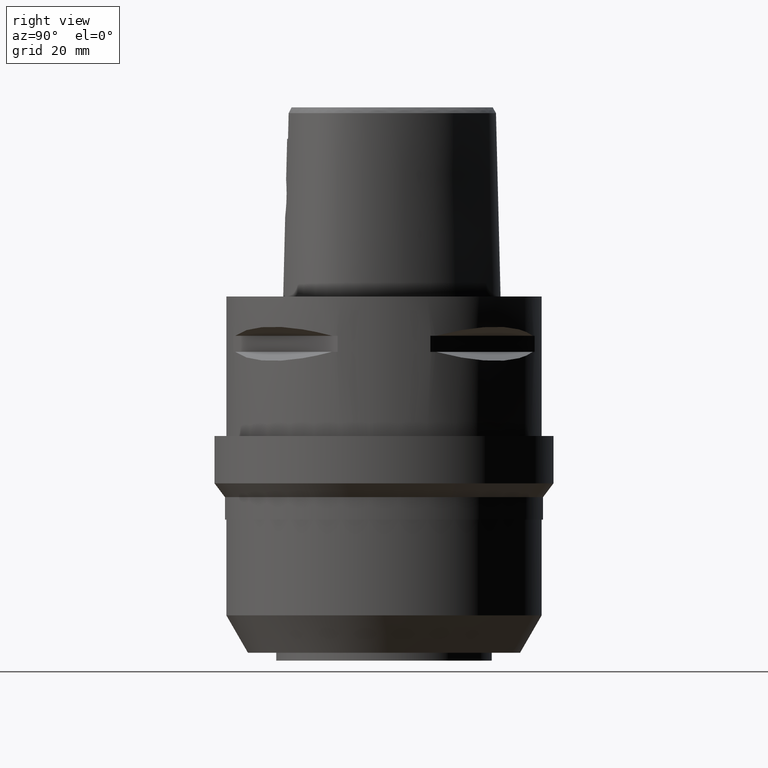
[diagram: clean part render]
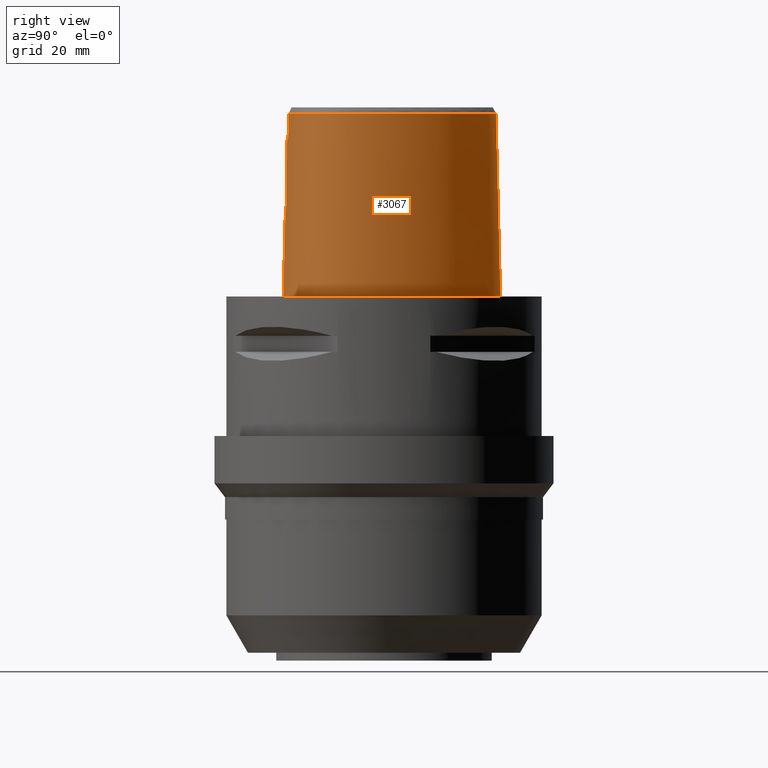
[diagram: same view with one face highlighted and labeled with its STEP entity id]
A machine part, right view. The second image highlights one B-rep face of the part: STEP entity #3067.
In plain terms, the highlighted face is a freeform B-spline surface patch.
Its self-contained STEP definition (entity closure, byte-faithful):
#132=CARTESIAN_POINT('',(4.472216720977E0,-2.420009030094E1,4.652069014669E1));
#142=CARTESIAN_POINT('',(-1.223003593101E-11,2.841206021535E1,
4.652071719451E1));
#143=CARTESIAN_POINT('',(4.473052303374E-1,2.841206021535E1,4.652071719450E1));
#144=CARTESIAN_POINT('',(1.340255071175E0,2.836691543486E1,4.652068040744E1));
#145=CARTESIAN_POINT('',(2.756726260826E0,2.815155549740E1,4.652072059112E1));
#146=CARTESIAN_POINT('',(4.242407517223E0,2.777300766547E1,4.652071747354E1));
#147=CARTESIAN_POINT('',(5.832995938368E0,2.719978431937E1,4.652072012237E1));
#148=CARTESIAN_POINT('',(7.464692637055E0,2.643136714353E1,4.652071453177E1));
#149=CARTESIAN_POINT('',(9.051050925058E0,2.551457629101E1,4.652072503055E1));
#150=CARTESIAN_POINT('',(1.063657931704E1,2.443220907429E1,4.652071388998E1));
#151=CARTESIAN_POINT('',(1.222026376156E1,2.317947605267E1,4.652072845982E1));
#152=CARTESIAN_POINT('',(1.380487927744E1,2.175024345407E1,4.652072124714E1));
#153=CARTESIAN_POINT('',(1.547133671191E1,2.004668810584E1,4.652070873213E1));
#154=CARTESIAN_POINT('',(1.724053071546E1,1.798818270638E1,4.652072706152E1));
#155=CARTESIAN_POINT('',(1.911012701481E1,1.549050547782E1,4.652068367594E1));
#156=CARTESIAN_POINT('',(2.100569884436E1,1.252918350586E1,4.652072594476E1));
#157=CARTESIAN_POINT('',(2.268526048937E1,9.399382483775E0,4.652069199709E1));
#158=CARTESIAN_POINT('',(2.398789417082E1,6.468905484010E0,4.652072817443E1));
#159=CARTESIAN_POINT('',(2.493327135881E1,3.881751196728E0,4.652070128272E1));
#160=CARTESIAN_POINT('',(2.562133203878E1,1.547213393791E0,4.652072173797E1));
#161=CARTESIAN_POINT('',(2.610948330496E1,-6.039153198714E-1,4.652071504918E1));
#162=CARTESIAN_POINT('',(2.643075552833E1,-2.616795928225E0,4.652071582242E1));
#163=CARTESIAN_POINT('',(2.660356724347E1,-4.529300696725E0,4.652072654704E1));
#164=CARTESIAN_POINT('',(2.663447474330E1,-6.381662783093E0,4.652071344010E1));
#165=CARTESIAN_POINT('',(2.651480075670E1,-8.194568157117E0,4.652072235775E1));
#166=CARTESIAN_POINT('',(2.624542532007E1,-9.884535479781E0,4.652071793976E1));
#167=CARTESIAN_POINT('',(2.585260387256E1,-1.139751630477E1,4.652072134273E1));
#168=CARTESIAN_POINT('',(2.535188582919E1,-1.275966346998E1,4.652071174524E1));
#169=CARTESIAN_POINT('',(2.475667352027E1,-1.398474150121E1,4.652071923547E1));
#170=CARTESIAN_POINT('',(2.405083357627E1,-1.512505966824E1,4.652072292321E1));
#171=CARTESIAN_POINT('',(2.319182842129E1,-1.624358996820E1,4.652072107905E1));
#172=CARTESIAN_POINT('',(2.215667106090E1,-1.734612162869E1,4.652071780396E1));
#173=CARTESIAN_POINT('',(2.091376923437E1,-1.843694157628E1,4.652071805933E1));
#174=CARTESIAN_POINT('',(1.945604579227E1,-1.948880862358E1,4.652071719493E1));
#175=CARTESIAN_POINT('',(1.788897376920E1,-2.042492726210E1,4.652071965619E1));
#176=CARTESIAN_POINT('',(1.619764506069E1,-2.126796279424E1,4.652071675561E1));
#177=CARTESIAN_POINT('',(1.435712536504E1,-2.202878227441E1,4.652071919910E1));
#178=CARTESIAN_POINT('',(1.234138327976E1,-2.271012319689E1,4.652071993804E1));
#179=CARTESIAN_POINT('',(1.009831522388E1,-2.331272858243E1,4.652070382142E1));
#180=CARTESIAN_POINT('',(7.538588905751E0,-2.383037474628E1,4.652075072090E1));
#181=CARTESIAN_POINT('',(5.536084334022E0,-2.409825088739E1,4.652065091830E1));
#182=CARTESIAN_POINT('',(4.472216720977E0,-2.420009030094E1,4.652069014669E1));
#259=DIRECTION('',(1.388127436484E-9,-2.499239851702E-2,-9.996876412242E-1));
#260=VECTOR('',#259,1.045326522127E1);
#261=CARTESIAN_POINT('',(-1.451045074373E-8,-2.457504746727E1,
4.000000005214E1));
#262=LINE('',#261,#260);
#280=CARTESIAN_POINT('',(-2.119246273958E-12,-2.506378435149E1,2.045E1));
#285=DIRECTION('',(-7.297938437820E-13,-2.499051295404E-2,-9.996876883619E-1));
#286=VECTOR('',#285,2.045638876829E1);
#287=CARTESIAN_POINT('',(-2.119246273958E-12,-2.506378435149E1,2.045E1));
#288=LINE('',#287,#286);
#308=CARTESIAN_POINT('',(-1.704819286307E-11,-2.5575E1,1.118364660139E-13));
#309=CARTESIAN_POINT('',(1.192855654687E0,-2.5575E1,1.118364660139E-13));
#310=CARTESIAN_POINT('',(3.525474009142E0,-2.548902365288E1,
-5.190348450835E-14));
#311=CARTESIAN_POINT('',(6.913191500119E0,-2.511614812679E1,
1.390749675837E-14));
#312=CARTESIAN_POINT('',(1.004555650592E1,-2.453146325509E1,0.E0));
#313=CARTESIAN_POINT('',(1.287480431389E1,-2.377673871202E1,0.E0));
#314=CARTESIAN_POINT('',(1.537685864343E1,-2.289357187451E1,0.E0));
#315=CARTESIAN_POINT('',(1.755784012921E1,-2.191831839298E1,0.E0));
#316=CARTESIAN_POINT('',(1.943977073912E1,-2.087916476292E1,0.E0));
#317=CARTESIAN_POINT('',(2.105231534689E1,-1.979609368880E1,0.E0));
#318=CARTESIAN_POINT('',(2.242617933573E1,-1.868231820935E1,0.E0));
#319=CARTESIAN_POINT('',(2.359218890728E1,-1.754336768509E1,0.E0));
#320=CARTESIAN_POINT('',(2.457422268564E1,-1.638207117775E1,0.E0));
#321=CARTESIAN_POINT('',(2.539083324940E1,-1.520281756939E1,0.E0));
#322=CARTESIAN_POINT('',(2.607594664674E1,-1.396989071493E1,0.E0));
#323=CARTESIAN_POINT('',(2.665774432240E1,-1.262889422025E1,0.E0));
#324=CARTESIAN_POINT('',(2.713657693131E1,-1.115034439777E1,0.E0));
#325=CARTESIAN_POINT('',(2.749973550563E1,-9.518521507E0,0.E0));
#326=CARTESIAN_POINT('',(2.773143210919E1,-7.709925722843E0,0.E0));
#327=CARTESIAN_POINT('',(2.780878539476E1,-5.702858580120E0,0.E0));
#328=CARTESIAN_POINT('',(2.770312756552E1,-3.478249491200E0,0.E0));
#329=CARTESIAN_POINT('',(2.738074183948E1,-1.022878890598E0,0.E0));
#330=CARTESIAN_POINT('',(2.680591021336E1,1.662565602731E0,0.E0));
#331=CARTESIAN_POINT('',(2.594630766962E1,4.557115348051E0,0.E0));
#332=CARTESIAN_POINT('',(2.478176121823E1,7.610490465510E0,0.E0));
#333=CARTESIAN_POINT('',(2.331365745279E1,1.074148685814E1,0.E0));
#334=CARTESIAN_POINT('',(2.157347165724E1,1.384011179641E1,0.E0));
#335=CARTESIAN_POINT('',(1.964060043903E1,1.675996304863E1,0.E0));
#336=CARTESIAN_POINT('',(1.759822796826E1,1.939974571574E1,0.E0));
#337=CARTESIAN_POINT('',(1.551951354564E1,2.170589686970E1,0.E0));
#338=CARTESIAN_POINT('',(1.346458118819E1,2.365966150815E1,0.E0));
#339=CARTESIAN_POINT('',(1.147339877138E1,2.527228069645E1,0.E0));
#340=CARTESIAN_POINT('',(9.569291645170E0,2.657104012927E1,0.E0));
#341=CARTESIAN_POINT('',(7.761236493572E0,2.759097337069E1,0.E0));
#342=CARTESIAN_POINT('',(6.048963475842E0,2.836733969280E1,0.E0));
#343=CARTESIAN_POINT('',(4.426464392993E0,2.893213407126E1,0.E0));
#344=CARTESIAN_POINT('',(2.883294620587E0,2.931235794594E1,1.312054045603E-14));
#345=CARTESIAN_POINT('',(1.410670896354E0,2.952903181481E1,
-4.896652360467E-14));
#346=CARTESIAN_POINT('',(4.637439554641E-1,2.957499999999E1,
1.055081947735E-13));
#347=CARTESIAN_POINT('',(4.094835185930E-11,2.957499999999E1,
1.055081947735E-13));
#352=CARTESIAN_POINT('',(4.094835185930E-11,2.957499999999E1,
1.055081947735E-13));
#391=CARTESIAN_POINT('',(-1.704819286307E-11,-2.5575E1,1.118364660139E-13));
#994=CARTESIAN_POINT('',(-2.119246273958E-12,-2.506378435149E1,2.045E1));
#995=CARTESIAN_POINT('',(3.954072385966E-1,-2.506378435149E1,2.045E1));
#996=CARTESIAN_POINT('',(1.186753459268E0,-2.505127021271E1,2.055377441387E1));
#997=CARTESIAN_POINT('',(2.293901026105E0,-2.499899038356E1,2.101029884895E1));
#998=CARTESIAN_POINT('',(3.249199742156E0,-2.492423366302E1,2.174038340004E1));
#999=CARTESIAN_POINT('',(3.983109891139E0,-2.484333493048E1,2.269399437273E1));
#1000=CARTESIAN_POINT('',(4.444902099457E0,-2.477340454867E1,2.380604644136E1));
#1001=CARTESIAN_POINT('',(4.602189725522E0,-2.472804812745E1,2.499792083744E1));
#1002=CARTESIAN_POINT('',(4.446334752733E0,-2.471346400510E1,2.618704469361E1));
#1003=CARTESIAN_POINT('',(3.988616765538E0,-2.472738510881E1,2.729584248229E1));
#1004=CARTESIAN_POINT('',(3.258671858173E0,-2.476043868878E1,2.825013255838E1));
#1005=CARTESIAN_POINT('',(2.303887962671E0,-2.479896037678E1,2.898443751551E1));
#1006=CARTESIAN_POINT('',(1.191549157684E0,-2.482886762172E1,2.944549741629E1));
#1007=CARTESIAN_POINT('',(3.970274391534E-1,-2.483629963748E1,2.955E1));
#1008=CARTESIAN_POINT('',(1.351075727146E-14,-2.483629963748E1,2.955E1));
#1013=CARTESIAN_POINT('',(4.602926386879E0,-2.435121850030E1,4.000000005215E1));
#1014=CARTESIAN_POINT('',(4.588866899356E0,-2.433440433283E1,4.072434907413E1));
#1015=CARTESIAN_POINT('',(4.559961035626E0,-2.430022594202E1,4.217314077647E1));
#1016=CARTESIAN_POINT('',(4.516394065040E0,-2.424985529238E1,4.434670381198E1));
#1017=CARTESIAN_POINT('',(4.487210999458E0,-2.421685509515E1,4.579599754735E1));
#1018=CARTESIAN_POINT('',(4.472216720977E0,-2.420009030094E1,4.652069014669E1));
#1023=DIRECTION('',(1.142754943752E-12,2.499051293969E-2,-9.996876883622E-1));
#1024=VECTOR('',#1023,4.653525069487E1);
#1025=CARTESIAN_POINT('',(-1.223003593101E-11,2.841206021535E1,
4.652071719451E1));
#1026=LINE('',#1025,#1024);
#1030=CARTESIAN_POINT('',(4.602926386879E0,-2.435121850030E1,4.000000005215E1));
#1031=CARTESIAN_POINT('',(4.092927945188E0,-2.440134254990E1,4.000000005215E1));
#1032=CARTESIAN_POINT('',(3.071957838276E0,-2.448406989328E1,3.999999998262E1));
#1033=CARTESIAN_POINT('',(1.536621703767E0,-2.455890147704E1,3.999999998262E1));
#1034=CARTESIAN_POINT('',(5.124223333400E-1,-2.457504746727E1,
4.000000005214E1));
#1035=CARTESIAN_POINT('',(-1.451045074373E-8,-2.457504746727E1,
4.000000005214E1));
#1040=CARTESIAN_POINT('',(-1.451045074373E-8,-2.457504746727E1,
4.000000005214E1));
#1519=VERTEX_POINT('',#132);
#1520=VERTEX_POINT('',#1013);
#1524=CARTESIAN_POINT('',(-1.223003593101E-11,2.841206021535E1,
4.652071719451E1));
#1525=VERTEX_POINT('',#1524);
#1526=VERTEX_POINT('',#352);
#1527=VERTEX_POINT('',#391);
#1528=VERTEX_POINT('',#1040);
#1529=CARTESIAN_POINT('',(1.351075727145E-14,-2.483629963748E1,2.955E1));
#1530=VERTEX_POINT('',#1529);
#1531=VERTEX_POINT('',#280);
#2947=CARTESIAN_POINT('',(-8.532294277688E-1,-2.559082453144E1,
-9.304144973777E-1));
#2948=CARTESIAN_POINT('',(-8.462047058068E-1,-2.518772800224E1,
1.519677012384E1));
#2949=CARTESIAN_POINT('',(-8.391799838448E-1,-2.478463147304E1,
3.132395474505E1));
#2950=CARTESIAN_POINT('',(-8.321552618827E-1,-2.438153494385E1,
4.745113936626E1));
#2951=CARTESIAN_POINT('',(-5.689009026255E-1,-2.559577917836E1,
-9.304144973777E-1));
#2952=CARTESIAN_POINT('',(-5.642169923032E-1,-2.519264563524E1,
1.519677012384E1));
#2953=CARTESIAN_POINT('',(-5.595330819809E-1,-2.478951209212E1,
3.132395474505E1));
#2954=CARTESIAN_POINT('',(-5.548491716586E-1,-2.438637854900E1,
4.745113936626E1));
#2955=CARTESIAN_POINT('',(2.393561154381E0,-2.562160365921E1,
-9.304144973777E-1));
#2956=CARTESIAN_POINT('',(2.373865160051E0,-2.521827242139E1,1.519677012384E1));
#2957=CARTESIAN_POINT('',(2.354169165720E0,-2.481494118357E1,3.132395474505E1));
#2958=CARTESIAN_POINT('',(2.334473171390E0,-2.441160994575E1,4.745113936626E1));
#2959=CARTESIAN_POINT('',(6.695047936574E0,-2.526858194672E1,
-9.304144973777E-1));
#2960=CARTESIAN_POINT('',(6.639625075593E0,-2.486795320356E1,1.519677012384E1));
#2961=CARTESIAN_POINT('',(6.584202214611E0,-2.446732446040E1,3.132395474505E1));
#2962=CARTESIAN_POINT('',(6.528779353629E0,-2.406669571724E1,4.745113936626E1));
#2963=CARTESIAN_POINT('',(1.174634101497E1,-2.415815461144E1,
-9.304144973777E-1));
#2964=CARTESIAN_POINT('',(1.164093423786E1,-2.376831842989E1,1.519677012384E1));
#2965=CARTESIAN_POINT('',(1.153552746074E1,-2.337848224833E1,3.132395474505E1));
#2966=CARTESIAN_POINT('',(1.143012068363E1,-2.298864606677E1,4.745113936626E1));
#2967=CARTESIAN_POINT('',(1.530623779619E1,-2.298697010235E1,
-9.304144973777E-1));
#2968=CARTESIAN_POINT('',(1.515935281855E1,-2.261055603656E1,1.519677012384E1));
#2969=CARTESIAN_POINT('',(1.501246784092E1,-2.223414197077E1,3.132395474505E1));
#2970=CARTESIAN_POINT('',(1.486558286329E1,-2.185772790498E1,4.745113936626E1));
#2971=CARTESIAN_POINT('',(1.856135208421E1,-2.147443746736E1,
-9.304144973777E-1));
#2972=CARTESIAN_POINT('',(1.836798846562E1,-2.111924011647E1,1.519677012384E1));
#2973=CARTESIAN_POINT('',(1.817462484703E1,-2.076404276558E1,3.132395474505E1));
#2974=CARTESIAN_POINT('',(1.798126122845E1,-2.040884541469E1,4.745113936626E1));
#2975=CARTESIAN_POINT('',(2.143542293280E1,-1.961750339173E1,
-9.304144973777E-1));
#2976=CARTESIAN_POINT('',(2.119046238745E1,-1.929498366423E1,1.519677012384E1));
#2977=CARTESIAN_POINT('',(2.094550184211E1,-1.897246393673E1,3.132395474505E1));
#2978=CARTESIAN_POINT('',(2.070054129677E1,-1.864994420923E1,4.745113936626E1));
#2979=CARTESIAN_POINT('',(2.344929528192E1,-1.778045351985E1,
-9.304144973777E-1));
#2980=CARTESIAN_POINT('',(2.315870204504E1,-1.749879693631E1,1.519677012384E1));
#2981=CARTESIAN_POINT('',(2.286810880815E1,-1.721714035276E1,3.132395474505E1));
#2982=CARTESIAN_POINT('',(2.257751557127E1,-1.693548376922E1,4.745113936626E1));
#2983=CARTESIAN_POINT('',(2.479336081491E1,-1.613554022482E1,
-9.304144973777E-1));
#2984=CARTESIAN_POINT('',(2.446791222880E1,-1.589630653624E1,1.519677012384E1));
#2985=CARTESIAN_POINT('',(2.414246364269E1,-1.565707284767E1,3.132395474505E1));
#2986=CARTESIAN_POINT('',(2.381701505658E1,-1.541783915909E1,4.745113936626E1));
#2987=CARTESIAN_POINT('',(2.565830880209E1,-1.481383149385E1,
-9.304144973777E-1));
#2988=CARTESIAN_POINT('',(2.530843714164E1,-1.461183299627E1,1.519677012384E1));
#2989=CARTESIAN_POINT('',(2.495856548119E1,-1.440983449869E1,3.132395474505E1));
#2990=CARTESIAN_POINT('',(2.460869382075E1,-1.420783600110E1,4.745113936626E1));
#2991=CARTESIAN_POINT('',(2.637046814588E1,-1.340391019841E1,
-9.304144973777E-1));
#2992=CARTESIAN_POINT('',(2.600056140212E1,-1.324168030106E1,1.519677012384E1));
#2993=CARTESIAN_POINT('',(2.563065465836E1,-1.307945040371E1,3.132395474505E1));
#2994=CARTESIAN_POINT('',(2.526074791461E1,-1.291722050636E1,4.745113936626E1));
#2995=CARTESIAN_POINT('',(2.712297208031E1,-1.141745865555E1,
-9.304144973777E-1));
#2996=CARTESIAN_POINT('',(2.673375369916E1,-1.130662581364E1,1.519677012384E1));
#2997=CARTESIAN_POINT('',(2.634453531801E1,-1.119579297173E1,3.132395474505E1));
#2998=CARTESIAN_POINT('',(2.595531693686E1,-1.108496012982E1,4.745113936626E1));
#2999=CARTESIAN_POINT('',(2.770696775954E1,-8.754869100899E0,
-9.304144973777E-1));
#3000=CARTESIAN_POINT('',(2.730517726037E1,-8.703986976984E0,1.519677012384E1));
#3001=CARTESIAN_POINT('',(2.690338676120E1,-8.653104853069E0,3.132395474505E1));
#3002=CARTESIAN_POINT('',(2.650159626204E1,-8.602222729154E0,4.745113936626E1));
#3003=CARTESIAN_POINT('',(2.787808443151E1,-5.337383714055E0,
-9.304144973777E-1));
#3004=CARTESIAN_POINT('',(2.747379250764E1,-5.347524337095E0,1.519677012384E1));
#3005=CARTESIAN_POINT('',(2.706950058377E1,-5.357664960136E0,3.132395474505E1));
#3006=CARTESIAN_POINT('',(2.666520865989E1,-5.367805583176E0,4.745113936626E1));
#3007=CARTESIAN_POINT('',(2.756041892291E1,-1.762105663685E0,
-9.304144973777E-1));
#3008=CARTESIAN_POINT('',(2.716099298145E1,-1.823107493154E0,1.519677012384E1));
#3009=CARTESIAN_POINT('',(2.676156703999E1,-1.884109322623E0,3.132395474505E1));
#3010=CARTESIAN_POINT('',(2.636214109853E1,-1.945111152092E0,4.745113936626E1));
#3011=CARTESIAN_POINT('',(2.679474625823E1,1.906447387465E0,
-9.304144973777E-1));
#3012=CARTESIAN_POINT('',(2.640443225581E1,1.802817671408E0,1.519677012384E1));
#3013=CARTESIAN_POINT('',(2.601411825338E1,1.699187955350E0,3.132395474505E1));
#3014=CARTESIAN_POINT('',(2.562380425096E1,1.595558239293E0,4.745113936626E1));
#3015=CARTESIAN_POINT('',(2.523075706230E1,6.836210430762E0,
-9.304144973777E-1));
#3016=CARTESIAN_POINT('',(2.485610464671E1,6.683875464221E0,1.519677012384E1));
#3017=CARTESIAN_POINT('',(2.448145223112E1,6.531540497680E0,3.132395474505E1));
#3018=CARTESIAN_POINT('',(2.410679981553E1,6.379205531139E0,4.745113936626E1));
#3019=CARTESIAN_POINT('',(2.235908247812E1,1.290902243077E1,
-9.304144973777E-1));
#3020=CARTESIAN_POINT('',(2.200846692373E1,1.270659196414E1,1.519677012384E1));
#3021=CARTESIAN_POINT('',(2.165785136934E1,1.250416149751E1,3.132395474505E1));
#3022=CARTESIAN_POINT('',(2.130723581495E1,1.230173103088E1,4.745113936626E1));
#3023=CARTESIAN_POINT('',(1.777103258668E1,1.953703864480E1,
-9.304144973777E-1));
#3024=CARTESIAN_POINT('',(1.745811262042E1,1.927961880159E1,1.519677012384E1));
#3025=CARTESIAN_POINT('',(1.714519265416E1,1.902219895838E1,3.132395474505E1));
#3026=CARTESIAN_POINT('',(1.683227268790E1,1.876477911517E1,4.745113936626E1));
#3027=CARTESIAN_POINT('',(1.323332856327E1,2.406149249942E1,
-9.304144973777E-1));
#3028=CARTESIAN_POINT('',(1.296695409453E1,2.375598709267E1,1.519677012384E1));
#3029=CARTESIAN_POINT('',(1.270057962580E1,2.345048168591E1,3.132395474505E1));
#3030=CARTESIAN_POINT('',(1.243420515707E1,2.314497627916E1,4.745113936626E1));
#3031=CARTESIAN_POINT('',(9.316733117536E0,2.681182150683E1,
-9.304144973777E-1));
#3032=CARTESIAN_POINT('',(9.105791461544E0,2.646675913832E1,1.519677012384E1));
#3033=CARTESIAN_POINT('',(8.894849805552E0,2.612169676981E1,3.132395474505E1));
#3034=CARTESIAN_POINT('',(8.683908149560E0,2.577663440130E1,4.745113936626E1));
#3035=CARTESIAN_POINT('',(6.271543170713E0,2.837237220570E1,
-9.304144973777E-1));
#3036=CARTESIAN_POINT('',(6.114741921428E0,2.799897532781E1,1.519677012384E1));
#3037=CARTESIAN_POINT('',(5.957940672144E0,2.762557844993E1,3.132395474505E1));
#3038=CARTESIAN_POINT('',(5.801139422860E0,2.725218157205E1,4.745113936626E1));
#3039=CARTESIAN_POINT('',(3.154109046616E0,2.936302093426E1,
-9.304144973777E-1));
#3040=CARTESIAN_POINT('',(3.067023396795E0,2.896669974054E1,1.519677012384E1));
#3041=CARTESIAN_POINT('',(2.979937746975E0,2.857037854681E1,3.132395474505E1));
#3042=CARTESIAN_POINT('',(2.892852097155E0,2.817405735309E1,4.745113936626E1));
#3043=CARTESIAN_POINT('',(7.484115208010E-1,2.963215901968E1,
-9.304144973777E-1));
#3044=CARTESIAN_POINT('',(7.265635656695E-1,2.922802202840E1,1.519677012384E1));
#3045=CARTESIAN_POINT('',(7.047156105380E-1,2.882388503712E1,3.132395474505E1));
#3046=CARTESIAN_POINT('',(6.828676554065E-1,2.841974804585E1,4.745113936626E1));
#3047=CARTESIAN_POINT('',(-6.060951003762E-1,2.958848805176E1,
-9.304144973777E-1));
#3048=CARTESIAN_POINT('',(-5.886350995932E-1,2.918561926986E1,
1.519677012384E1));
#3049=CARTESIAN_POINT('',(-5.711750988101E-1,2.878275048796E1,
3.132395474505E1));
#3050=CARTESIAN_POINT('',(-5.537150980271E-1,2.837988170606E1,
4.745113936626E1));
#3051=CARTESIAN_POINT('',(-9.090099845217E-1,2.956867551648E1,
-9.304144973777E-1));
#3052=CARTESIAN_POINT('',(-8.826521031063E-1,2.916640541387E1,
1.519677012384E1));
#3053=CARTESIAN_POINT('',(-8.562942216909E-1,2.876413531125E1,
3.132395474505E1));
#3054=CARTESIAN_POINT('',(-8.299363402755E-1,2.836186520863E1,
4.745113936626E1));
#3055=B_SPLINE_SURFACE_WITH_KNOTS('',3,3,((#2947,#2948,#2949,#2950),(#2951,
#2952,#2953,#2954),(#2955,#2956,#2957,#2958),(#2959,#2960,#2961,#2962),(#2963,
#2964,#2965,#2966),(#2967,#2968,#2969,#2970),(#2971,#2972,#2973,#2974),(#2975,
#2976,#2977,#2978),(#2979,#2980,#2981,#2982),(#2983,#2984,#2985,#2986),(#2987,
#2988,#2989,#2990),(#2991,#2992,#2993,#2994),(#2995,#2996,#2997,#2998),(#2999,
#3000,#3001,#3002),(#3003,#3004,#3005,#3006),(#3007,#3008,#3009,#3010),(#3011,
#3012,#3013,#3014),(#3015,#3016,#3017,#3018),(#3019,#3020,#3021,#3022),(#3023,
#3024,#3025,#3026),(#3027,#3028,#3029,#3030),(#3031,#3032,#3033,#3034),(#3035,
#3036,#3037,#3038),(#3039,#3040,#3041,#3042),(#3043,#3044,#3045,#3046),(#3047,
#3048,#3049,#3050),(#3051,#3052,#3053,#3054)),.UNSPECIFIED.,.F.,.F.,.F.,(4,1,1,
1,1,1,1,1,1,1,1,1,1,1,1,1,1,1,1,1,1,1,1,1,4),(4,4),(-8.851417483040E-3,0.E0,
8.333333333346E-2,1.250000000001E-1,1.666666666668E-1,2.083333333334E-1,2.5E-1,
2.916666666667E-1,3.125E-1,3.333333333333E-1,3.541666666667E-1,
3.749999999999E-1,4.166666666666E-1,4.583333333332E-1,4.999999999999E-1,
5.416666666665E-1,5.833333333331E-1,6.666666666665E-1,7.499999999997E-1,
8.333333333330E-1,8.749999999996E-1,9.166666666663E-1,9.583333333329E-1,1.E0,
1.012009199036E0),(4.796630408838E-9,9.999997553720E-1),.UNSPECIFIED.);
#3056=ORIENTED_EDGE('',*,*,#2424,.F.);
#3057=ORIENTED_EDGE('',*,*,#2408,.F.);
#3058=ORIENTED_EDGE('',*,*,#2939,.T.);
#3059=ORIENTED_EDGE('',*,*,#2404,.F.);
#3061=ORIENTED_EDGE('',*,*,#3060,.F.);
#3062=ORIENTED_EDGE('',*,*,#1705,.T.);
#3063=ORIENTED_EDGE('',*,*,#1997,.F.);
#3064=ORIENTED_EDGE('',*,*,#2398,.T.);
#3065=EDGE_LOOP('',(#3056,#3057,#3058,#3059,#3061,#3062,#3063,#3064));
#3066=FACE_OUTER_BOUND('',#3065,.F.);
#183=B_SPLINE_CURVE_WITH_KNOTS('',3,(#142,#143,#144,#145,#146,#147,#148,#149,
#150,#151,#152,#153,#154,#155,#156,#157,#158,#159,#160,#161,#162,#163,#164,#165,
#166,#167,#168,#169,#170,#171,#172,#173,#174,#175,#176,#177,#178,#179,#180,#181,
#182),.UNSPECIFIED.,.F.,.F.,(4,1,1,1,1,1,1,1,1,1,1,1,1,1,1,1,1,1,1,1,1,1,1,1,1,
1,1,1,1,1,1,1,1,1,1,1,1,1,4),(0.E0,2.631578947368E-2,5.263157894737E-2,
7.894736842105E-2,1.052631578947E-1,1.315789473684E-1,1.578947368421E-1,
1.842105263158E-1,2.105263157895E-1,2.368421052632E-1,2.631578947368E-1,
2.894736842105E-1,3.157894736842E-1,3.421052631579E-1,3.684210526316E-1,
3.947368421053E-1,4.210526315789E-1,4.473684210526E-1,4.736842105263E-1,5.E-1,
5.263157894737E-1,5.526315789474E-1,5.789473684211E-1,6.052631578947E-1,
6.315789473684E-1,6.578947368421E-1,6.842105263158E-1,7.105263157895E-1,
7.368421052632E-1,7.631578947368E-1,7.894736842105E-1,8.157894736842E-1,
8.421052631579E-1,8.684210526316E-1,8.947368421053E-1,9.210526315789E-1,
9.473684210526E-1,9.736842105263E-1,1.E0),.UNSPECIFIED.);
#348=B_SPLINE_CURVE_WITH_KNOTS('',3,(#308,#309,#310,#311,#312,#313,#314,#315,
#316,#317,#318,#319,#320,#321,#322,#323,#324,#325,#326,#327,#328,#329,#330,#331,
#332,#333,#334,#335,#336,#337,#338,#339,#340,#341,#342,#343,#344,#345,#346,
#347),.UNSPECIFIED.,.F.,.F.,(4,1,1,1,1,1,1,1,1,1,1,1,1,1,1,1,1,1,1,1,1,1,1,1,1,
1,1,1,1,1,1,1,1,1,1,1,1,4),(0.E0,2.702702702703E-2,5.405405405405E-2,
8.108108108108E-2,1.081081081081E-1,1.351351351351E-1,1.621621621622E-1,
1.891891891892E-1,2.162162162162E-1,2.432432432432E-1,2.702702702703E-1,
2.972972972973E-1,3.243243243243E-1,3.513513513514E-1,3.783783783784E-1,
4.054054054054E-1,4.324324324324E-1,4.594594594595E-1,4.864864864865E-1,
5.135135135135E-1,5.405405405405E-1,5.675675675676E-1,5.945945945946E-1,
6.216216216216E-1,6.486486486486E-1,6.756756756757E-1,7.027027027027E-1,
7.297297297297E-1,7.567567567568E-1,7.837837837838E-1,8.108108108108E-1,
8.378378378378E-1,8.648648648649E-1,8.918918918919E-1,9.189189189189E-1,
9.459459459459E-1,9.729729729730E-1,1.E0),.UNSPECIFIED.);
#1009=B_SPLINE_CURVE_WITH_KNOTS('',3,(#994,#995,#996,#997,#998,#999,#1000,#1001,
#1002,#1003,#1004,#1005,#1006,#1007,#1008),.UNSPECIFIED.,.F.,.F.,(4,1,1,1,1,1,1,
1,1,1,1,1,4),(0.E0,8.333333333333E-2,1.666666666667E-1,2.5E-1,3.333333333333E-1,
4.166666666667E-1,5.E-1,5.833333333333E-1,6.666666666667E-1,7.5E-1,
8.333333333333E-1,9.166666666667E-1,1.E0),.UNSPECIFIED.);
#1019=B_SPLINE_CURVE_WITH_KNOTS('',3,(#1013,#1014,#1015,#1016,#1017,#1018),
.UNSPECIFIED.,.F.,.F.,(4,1,1,4),(0.E0,3.333333333333E-1,6.666666666667E-1,1.E0),
.UNSPECIFIED.);
#1036=B_SPLINE_CURVE_WITH_KNOTS('',3,(#1030,#1031,#1032,#1033,#1034,#1035),
.UNSPECIFIED.,.F.,.F.,(4,1,1,4),(0.E0,3.333333333333E-1,6.666666666667E-1,1.E0),
.UNSPECIFIED.);
#1705=EDGE_CURVE('',#1520,#1519,#1019,.T.);
#1997=EDGE_CURVE('',#1525,#1519,#183,.T.);
#2398=EDGE_CURVE('',#1525,#1526,#1026,.T.);
#2404=EDGE_CURVE('',#1528,#1530,#262,.T.);
#2408=EDGE_CURVE('',#1531,#1527,#288,.T.);
#2424=EDGE_CURVE('',#1527,#1526,#348,.T.);
#2939=EDGE_CURVE('',#1531,#1530,#1009,.T.);
#3060=EDGE_CURVE('',#1520,#1528,#1036,.T.);
#3067=ADVANCED_FACE('',(#3066),#3055,.T.);